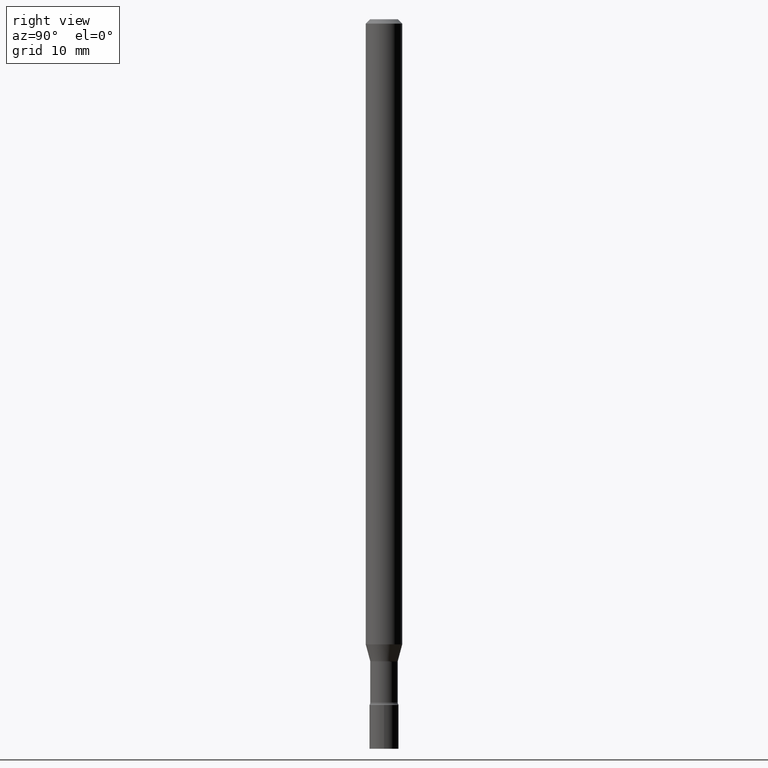
[diagram: clean part render]
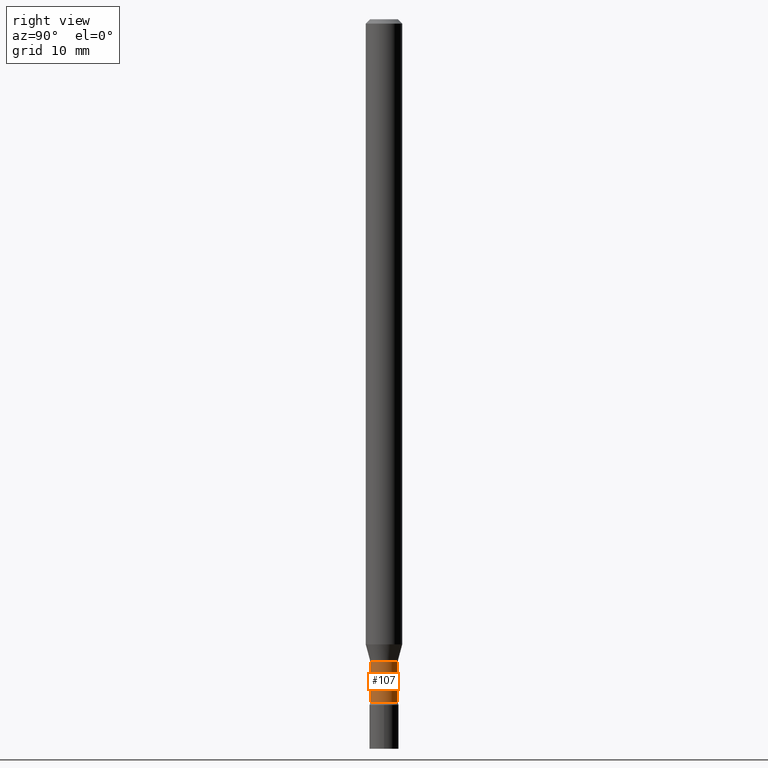
[diagram: same view with one face highlighted and labeled with its STEP entity id]
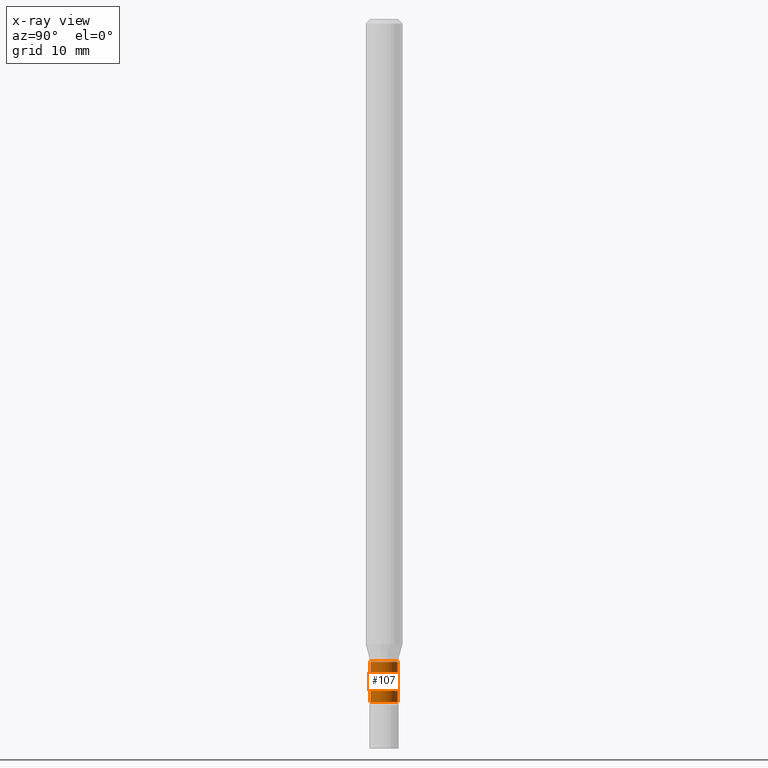
[diagram: x-ray of the same camera — body ghosted, the highlighted face saturated]
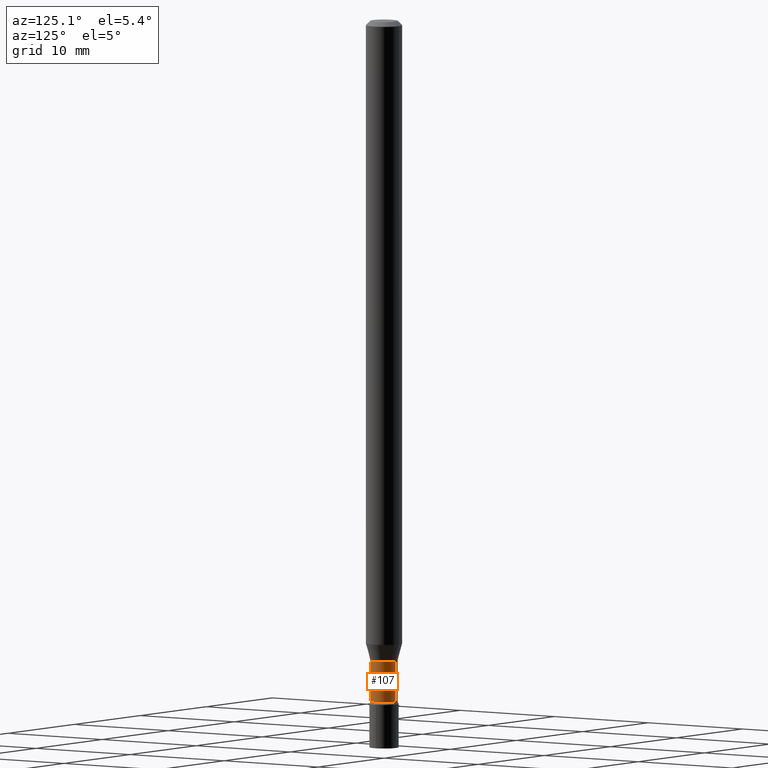
[diagram: same view with one face highlighted and labeled with its STEP entity id]
A machine part, right view. The second image highlights one B-rep face of the part: STEP entity #107.
The next image is the same camera in x-ray: the body ghosted, the highlighted face saturated — about 0% of this face is hidden behind the body in this view.
A second angle (auxiliary view) of the same face is appended — the face is thin or edge-on in the first view.
In plain terms, the highlighted cylindrical surface (edge-blend (fillet) strip) has radius 1.1938 mm, axis along (-0, 0, 1).
Its self-contained STEP definition (entity closure, byte-faithful):
#29 = EDGE_CURVE ( 'NONE', #287, #137, #125, .T. ) ;
#60 = DIRECTION ( 'NONE',  ( -6.982962677686265922E-15, -1.000000000000000000, 5.812442539711200167E-15 ) ) ;
#65 = CYLINDRICAL_SURFACE ( 'NONE', #113, 0.04699999999999999317 ) ;
#76 = CARTESIAN_POINT ( 'NONE',  ( 5.384822249939303966E-29, -7.688208876906198514E-15, -2.201974787463810923 ) ) ;
#84 = VERTEX_POINT ( 'NONE', #264 ) ;
#97 = CARTESIAN_POINT ( 'NONE',  ( 0.000000000000000000, 0.000000000000000000, 0.000000000000000000 ) ) ;
#107 = ADVANCED_FACE ( 'NONE', ( #414 ), #65, .T. ) ;
#113 = AXIS2_PLACEMENT_3D ( 'NONE', #97, #210, #173 ) ;
#125 = LINE ( 'NONE', #284, #365 ) ;
#137 = VERTEX_POINT ( 'NONE', #240 ) ;
#165 = AXIS2_PLACEMENT_3D ( 'NONE', #247, #455, #60 ) ;
#172 = CARTESIAN_POINT ( 'NONE',  ( 3.446132268437058914E-16, 0.04699999999999181916, -2.341000000000000192 ) ) ;
#173 = DIRECTION ( 'NONE',  ( -6.982962677686266711E-15, -1.000000000000000000, 3.491506315456645233E-15 ) ) ;
#186 = ORIENTED_EDGE ( 'NONE', *, *, #289, .T. ) ;
#210 = DIRECTION ( 'NONE',  ( -2.445451365109148725E-29, 3.491506315456644838E-15, 1.000000000000000000 ) ) ;
#222 = CARTESIAN_POINT ( 'NONE',  ( -3.281992458511971635E-16, -0.04700000000000816025, -2.340999999999999748 ) ) ;
#231 = EDGE_LOOP ( 'NONE', ( #186, #514, #257, #270 ) ) ;
#240 = CARTESIAN_POINT ( 'NONE',  ( 3.339550858073043299E-16, 0.04699999999999231182, -2.201974787463811367 ) ) ;
#243 = CARTESIAN_POINT ( 'NONE',  ( -3.281992458512545038E-16, -0.04699999999999999317, 1.641007968264622993E-16 ) ) ;
#247 = CARTESIAN_POINT ( 'NONE',  ( 5.724801645720516822E-29, -8.173616284484005646E-15, -2.341000000000000192 ) ) ;
#257 = ORIENTED_EDGE ( 'NONE', *, *, #517, .F. ) ;
#264 = CARTESIAN_POINT ( 'NONE',  ( -3.281992458512006641E-16, -0.04700000000000769534, -2.201974787463810923 ) ) ;
#267 = EDGE_CURVE ( 'NONE', #483, #84, #444, .T. ) ;
#270 = ORIENTED_EDGE ( 'NONE', *, *, #267, .F. ) ;
#280 = VECTOR ( 'NONE', #377, 39.37007874015748143 ) ;
#284 = CARTESIAN_POINT ( 'NONE',  ( 3.339550858072469895E-16, 0.04699999999999999317, -1.641007968264622993E-16 ) ) ;
#287 = VERTEX_POINT ( 'NONE', #172 ) ;
#289 = EDGE_CURVE ( 'NONE', #483, #287, #326, .T. ) ;
#326 = CIRCLE ( 'NONE', #165, 0.04699999999999998623 ) ;
#365 = VECTOR ( 'NONE', #443, 39.37007874015748143 ) ;
#366 = CIRCLE ( 'NONE', #456, 0.04700000000000000705 ) ;
#377 = DIRECTION ( 'NONE',  ( -2.445451365109148725E-29, 3.491506315456645233E-15, 1.000000000000000000 ) ) ;
#414 = FACE_OUTER_BOUND ( 'NONE', #231, .T. ) ;
#443 = DIRECTION ( 'NONE',  ( -2.445451365109148725E-29, 3.491506315456645233E-15, 1.000000000000000000 ) ) ;
#444 = LINE ( 'NONE', #243, #280 ) ;
#455 = DIRECTION ( 'NONE',  ( -2.445451365109148725E-29, 3.491506315456644838E-15, 1.000000000000000000 ) ) ;
#456 = AXIS2_PLACEMENT_3D ( 'NONE', #76, #458, #507 ) ;
#458 = DIRECTION ( 'NONE',  ( -2.445451365109148725E-29, 3.491506315456644838E-15, 1.000000000000000000 ) ) ;
#483 = VERTEX_POINT ( 'NONE', #222 ) ;
#507 = DIRECTION ( 'NONE',  ( -6.982962677686265922E-15, -1.000000000000000000, 5.812442539711197800E-15 ) ) ;
#514 = ORIENTED_EDGE ( 'NONE', *, *, #29, .T. ) ;
#517 = EDGE_CURVE ( 'NONE', #84, #137, #366, .T. ) ;